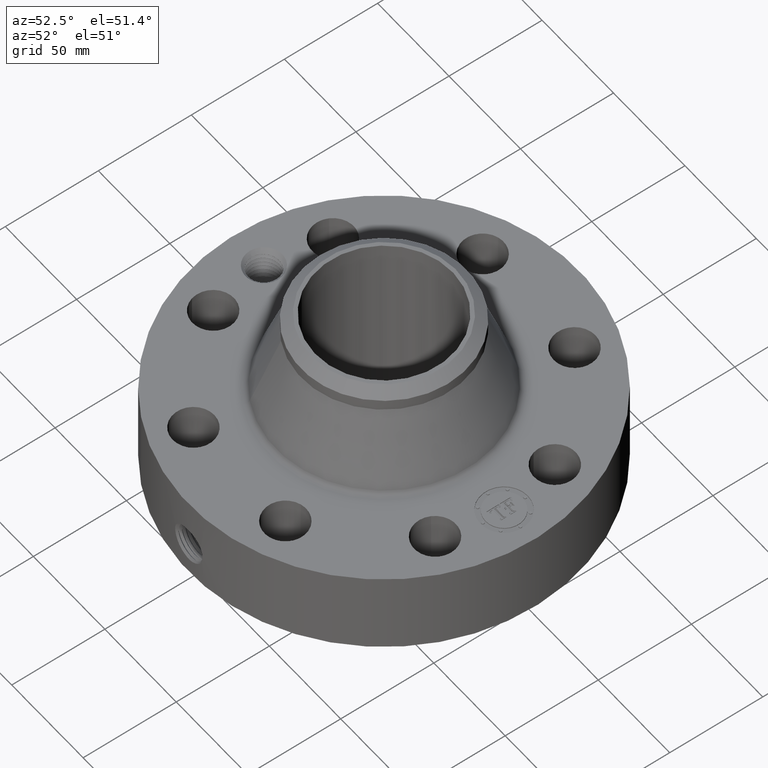
[diagram: clean part render]
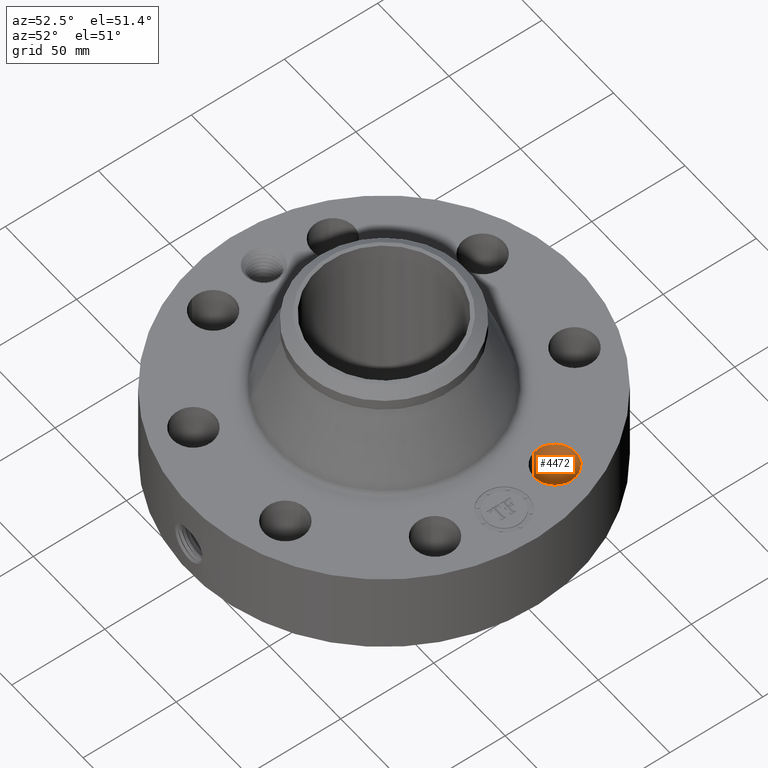
[diagram: same view with one face highlighted and labeled with its STEP entity id]
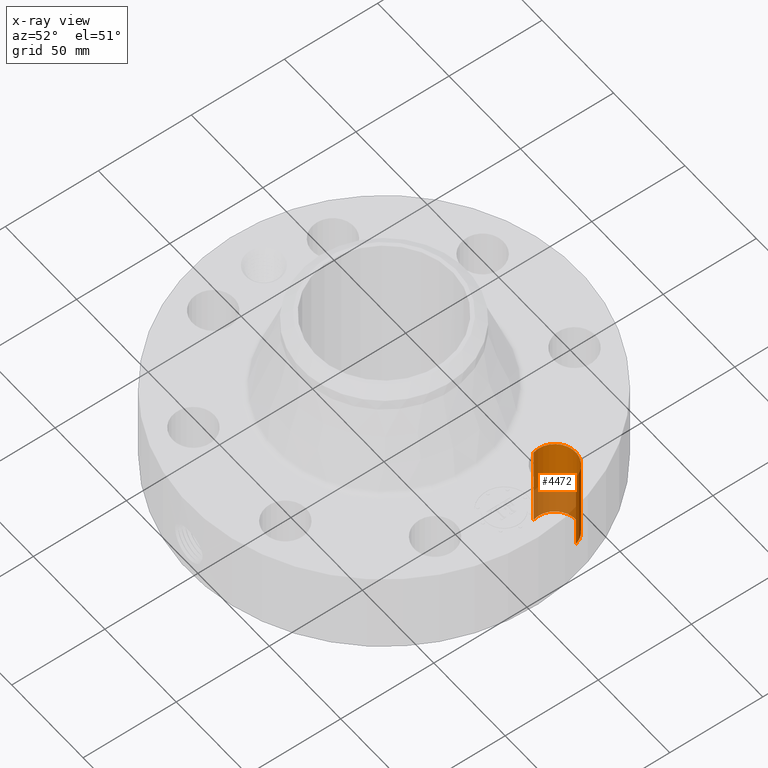
[diagram: x-ray of the same camera — body ghosted, the highlighted face saturated]
A machine part, auxiliary view. The second image highlights one B-rep face of the part: STEP entity #4472.
The next image is the same camera in x-ray: the body ghosted, the highlighted face saturated — about 37% of this face is hidden behind the body in this view.
In plain terms, the highlighted cylindrical surface (edge-blend (fillet) strip) has radius 11.176 mm, axis along (0, 0, -1).
Its self-contained STEP definition (entity closure, byte-faithful):
#3093=AXIS2_PLACEMENT_3D('Circle Axis2P3D',#3091,#3092,$) ;
#4445=AXIS2_PLACEMENT_3D('Cylinder Axis2P3D',#4442,#4443,#4444) ;
#4456=AXIS2_PLACEMENT_3D('Circle Axis2P3D',#4454,#4455,$) ;
#3086=CARTESIAN_POINT('Vertex',(3.48024308982,1.39055955484,1.81200000001)) ;
#3088=CARTESIAN_POINT('Vertex',(2.63583941543,1.14280476743,1.81200000001)) ;
#3091=CARTESIAN_POINT('Axis2P3D Location',(3.05804125262,1.26668216113,1.81200000001)) ;
#4442=CARTESIAN_POINT('Axis2P3D Location',(3.05804125262,1.26668216113,1.80806299213)) ;
#4447=CARTESIAN_POINT('Line Origine',(2.63583941543,1.14280476743,0.906000000004)) ;
#4451=CARTESIAN_POINT('Vertex',(2.63583941543,1.14280476743,0.)) ;
#4454=CARTESIAN_POINT('Axis2P3D Location',(3.05804125262,1.26668216113,0.)) ;
#4458=CARTESIAN_POINT('Vertex',(3.48024308982,1.39055955484,0.)) ;
#4461=CARTESIAN_POINT('Line Origine',(3.48024308982,1.39055955484,0.906000000004)) ;
#3092=DIRECTION('Axis2P3D Direction',(0.,0.,-0.0393700787402)) ;
#4443=DIRECTION('Axis2P3D Direction',(0.,0.,-0.0393700787402)) ;
#4444=DIRECTION('Axis2P3D XDirection',(0.0377775444876,0.0110842335096,0.)) ;
#4448=DIRECTION('Vector Direction',(0.,0.,-0.0393700787402)) ;
#4455=DIRECTION('Axis2P3D Direction',(0.,0.,-0.0393700787402)) ;
#4462=DIRECTION('Vector Direction',(0.,0.,-0.0393700787402)) ;
#4449=VECTOR('Line Direction',#4448,0.0393700787402) ;
#4463=VECTOR('Line Direction',#4462,0.0393700787402) ;
#4467=ORIENTED_EDGE('',*,*,#4453,.F.) ;
#4468=ORIENTED_EDGE('',*,*,#4460,.T.) ;
#4469=ORIENTED_EDGE('',*,*,#4465,.T.) ;
#4470=ORIENTED_EDGE('',*,*,#3095,.F.) ;
#4472=ADVANCED_FACE('PartBody',(#4471),#4446,.F.) ;
#3094=CIRCLE('generated circle',#3093,0.440000000002) ;
#4457=CIRCLE('generated circle',#4456,0.440000000002) ;
#4446=CYLINDRICAL_SURFACE('generated cylinder',#4445,0.440000000002) ;
#3095=EDGE_CURVE('',#3089,#3087,#3094,.T.) ;
#4453=EDGE_CURVE('',#4452,#3089,#4450,.F.) ;
#4460=EDGE_CURVE('',#4452,#4459,#4457,.T.) ;
#4465=EDGE_CURVE('',#4459,#3087,#4464,.F.) ;
#4466=EDGE_LOOP('',(#4467,#4468,#4469,#4470)) ;
#4471=FACE_OUTER_BOUND('',#4466,.T.) ;
#4450=LINE('Line',#4447,#4449) ;
#4464=LINE('Line',#4461,#4463) ;
#3087=VERTEX_POINT('',#3086) ;
#3089=VERTEX_POINT('',#3088) ;
#4452=VERTEX_POINT('',#4451) ;
#4459=VERTEX_POINT('',#4458) ;